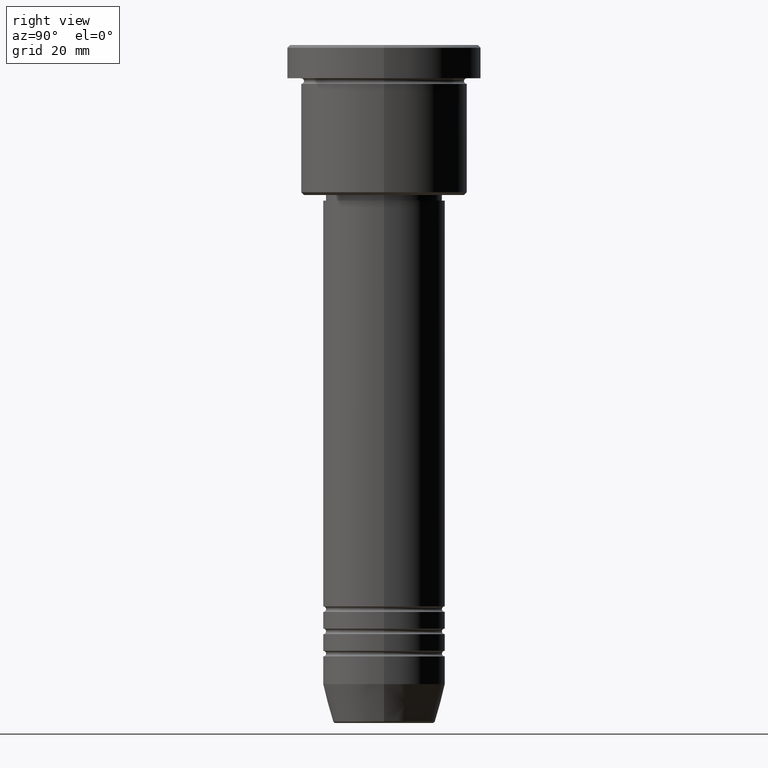
[diagram: clean part render]
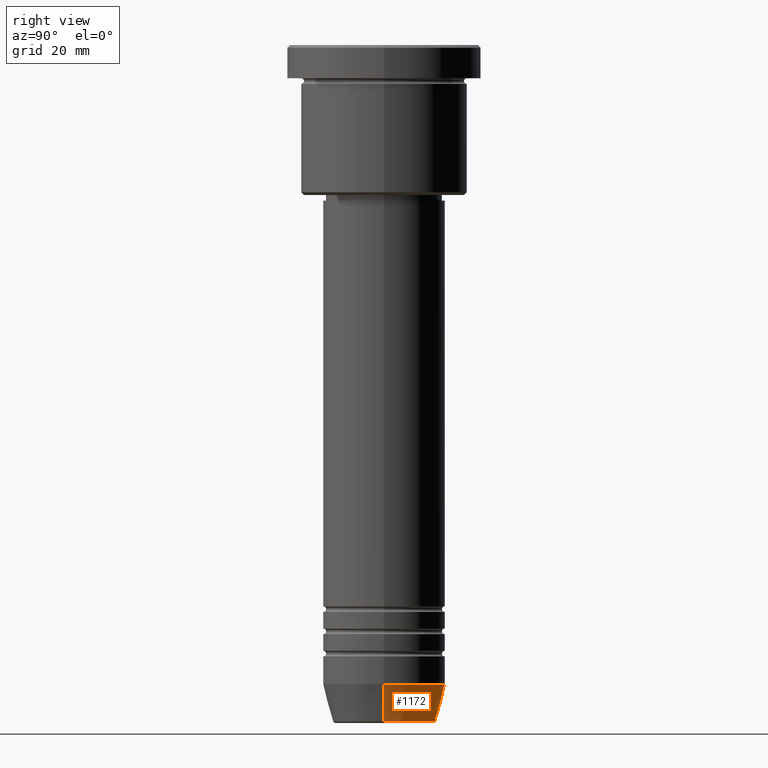
[diagram: same view with one face highlighted and labeled with its STEP entity id]
A machine part, right view. The second image highlights one B-rep face of the part: STEP entity #1172.
In plain terms, the highlighted conical surface has half-angle 15 deg.
Its self-contained STEP definition (entity closure, byte-faithful):
#12 = VERTEX_POINT ( 'NONE', #369 ) ;
#33 = CARTESIAN_POINT ( 'NONE',  ( -9.223655072137194821, 1.238341722557647399E-15, -121.6294095225512422 ) ) ;
#76 = DIRECTION ( 'NONE',  ( -0.000000000000000000, -0.000000000000000000, 1.000000000000000000 ) ) ;
#122 = VERTEX_POINT ( 'NONE', #33 ) ;
#138 = CARTESIAN_POINT ( 'NONE',  ( -11.00000000000000000, 1.347111479062088405E-15, -115.0000000000000000 ) ) ;
#141 = AXIS2_PLACEMENT_3D ( 'NONE', #979, #705, #893 ) ;
#204 = EDGE_LOOP ( 'NONE', ( #341, #858, #647, #373 ) ) ;
#206 = EDGE_CURVE ( 'NONE', #823, #122, #627, .T. ) ;
#225 = DIRECTION ( 'NONE',  ( 0.2588190451025213501, 0.000000000000000000, 0.9659258262890680902 ) ) ;
#233 = CONICAL_SURFACE ( 'NONE', #141, 11.00000000000000000, 0.2617993877991500740 ) ;
#234 = LINE ( 'NONE', #968, #401 ) ;
#269 = DIRECTION ( 'NONE',  ( 1.000000000000000000, 0.000000000000000000, 0.000000000000000000 ) ) ;
#341 = ORIENTED_EDGE ( 'NONE', *, *, #206, .T. ) ;
#356 = DIRECTION ( 'NONE',  ( -0.000000000000000000, -0.000000000000000000, 1.000000000000000000 ) ) ;
#369 = CARTESIAN_POINT ( 'NONE',  ( 11.00000000000000000, 0.000000000000000000, -115.0000000000000000 ) ) ;
#373 = ORIENTED_EDGE ( 'NONE', *, *, #1092, .F. ) ;
#401 = VECTOR ( 'NONE', #225, 1000.000000000000000 ) ;
#439 = VECTOR ( 'NONE', #1165, 1000.000000000000000 ) ;
#600 = DIRECTION ( 'NONE',  ( 1.000000000000000000, 0.000000000000000000, 0.000000000000000000 ) ) ;
#601 = FACE_OUTER_BOUND ( 'NONE', #204, .T. ) ;
#627 = CIRCLE ( 'NONE', #1081, 9.223655072137194821 ) ;
#630 = CARTESIAN_POINT ( 'NONE',  ( -11.00000000000000000, 1.347111479062088405E-15, -115.0000000000000000 ) ) ;
#647 = ORIENTED_EDGE ( 'NONE', *, *, #741, .F. ) ;
#705 = DIRECTION ( 'NONE',  ( -0.000000000000000000, -0.000000000000000000, 1.000000000000000000 ) ) ;
#728 = LINE ( 'NONE', #630, #439 ) ;
#741 = EDGE_CURVE ( 'NONE', #12, #928, #1171, .T. ) ;
#823 = VERTEX_POINT ( 'NONE', #950 ) ;
#858 = ORIENTED_EDGE ( 'NONE', *, *, #971, .T. ) ;
#893 = DIRECTION ( 'NONE',  ( 1.000000000000000000, 0.000000000000000000, 0.000000000000000000 ) ) ;
#928 = VERTEX_POINT ( 'NONE', #138 ) ;
#950 = CARTESIAN_POINT ( 'NONE',  ( 9.223655072137194821, 0.000000000000000000, -121.6294095225512422 ) ) ;
#968 = CARTESIAN_POINT ( 'NONE',  ( 11.00000000000000000, 0.000000000000000000, -115.0000000000000000 ) ) ;
#971 = EDGE_CURVE ( 'NONE', #122, #928, #728, .T. ) ;
#979 = CARTESIAN_POINT ( 'NONE',  ( 0.000000000000000000, 0.000000000000000000, -115.0000000000000000 ) ) ;
#1052 = CARTESIAN_POINT ( 'NONE',  ( 0.000000000000000000, 0.000000000000000000, -115.0000000000000000 ) ) ;
#1068 = AXIS2_PLACEMENT_3D ( 'NONE', #1052, #76, #600 ) ;
#1081 = AXIS2_PLACEMENT_3D ( 'NONE', #1160, #356, #269 ) ;
#1092 = EDGE_CURVE ( 'NONE', #823, #12, #234, .T. ) ;
#1160 = CARTESIAN_POINT ( 'NONE',  ( 0.000000000000000000, 0.000000000000000000, -121.6294095225512422 ) ) ;
#1165 = DIRECTION ( 'NONE',  ( -0.2588190451025213501, 3.169619151431772337E-17, 0.9659258262890680902 ) ) ;
#1171 = CIRCLE ( 'NONE', #1068, 11.00000000000000000 ) ;
#1172 = ADVANCED_FACE ( 'NONE', ( #601 ), #233, .T. ) ;